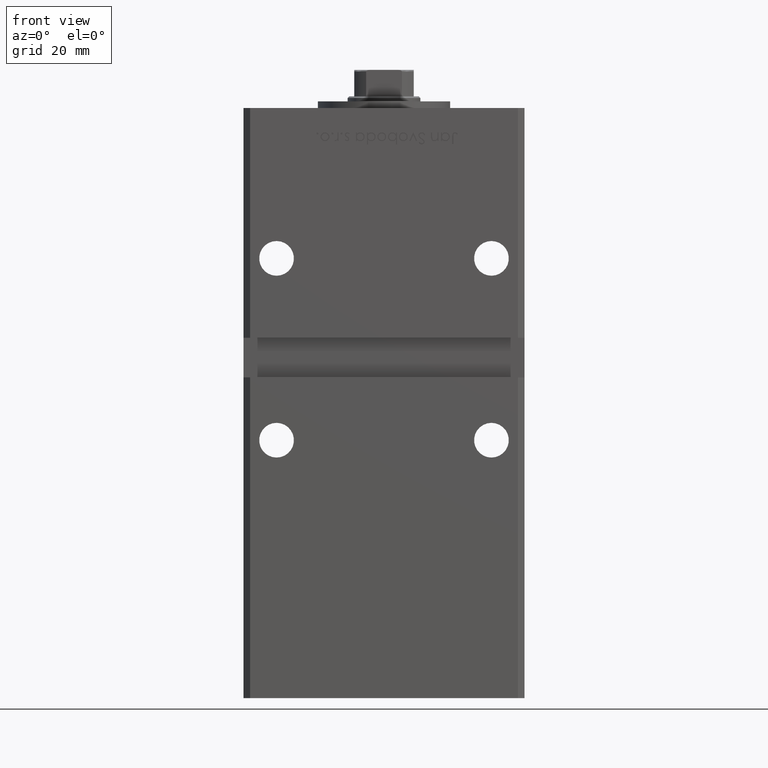
[diagram: clean part render]
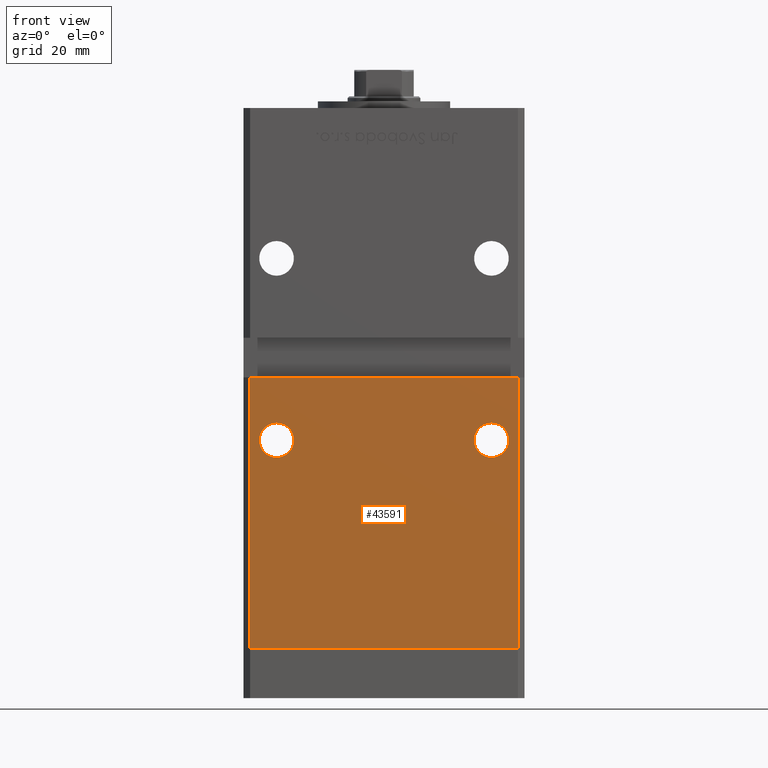
[diagram: same view with one face highlighted and labeled with its STEP entity id]
A machine part, front view. The second image highlights one B-rep face of the part: STEP entity #43591.
In plain terms, the highlighted planar face has unit normal (0, 1, 0).
Its self-contained STEP definition (entity closure, byte-faithful):
#136 = EDGE_LOOP ( 'NONE', ( #12746, #12372, #34602, #43545 ) ) ;
#552 = ORIENTED_EDGE ( 'NONE', *, *, #21589, .T. ) ;
#597 = AXIS2_PLACEMENT_3D ( 'NONE', #13013, #24601, #48774 ) ;
#1193 = VECTOR ( 'NONE', #36229, 1000.000000000000000 ) ;
#3377 = VECTOR ( 'NONE', #20659, 1000.000000000000000 ) ;
#3743 = LINE ( 'NONE', #24982, #15023 ) ;
#5142 = EDGE_CURVE ( 'NONE', #6617, #48277, #19492, .T. ) ;
#5181 = AXIS2_PLACEMENT_3D ( 'NONE', #16412, #7797, #24218 ) ;
#5877 = DIRECTION ( 'NONE',  ( 0.000000000000000000, 0.000000000000000000, 1.000000000000000000 ) ) ;
#6161 = EDGE_LOOP ( 'NONE', ( #552, #37387 ) ) ;
#6617 = VERTEX_POINT ( 'NONE', #28669 ) ;
#7797 = DIRECTION ( 'NONE',  ( 0.000000000000000000, 1.000000000000000000, 0.000000000000000000 ) ) ;
#8001 = DIRECTION ( 'NONE',  ( 1.000000000000000000, 0.000000000000000000, 0.000000000000000000 ) ) ;
#8129 = DIRECTION ( 'NONE',  ( 0.000000000000000000, 1.000000000000000000, 0.000000000000000000 ) ) ;
#8796 = VERTEX_POINT ( 'NONE', #25639 ) ;
#9299 = PLANE ( 'NONE',  #24311 ) ;
#9838 = VECTOR ( 'NONE', #8001, 1000.000000000000000 ) ;
#10767 = ORIENTED_EDGE ( 'NONE', *, *, #43201, .T. ) ;
#11644 = CARTESIAN_POINT ( 'NONE',  ( -32.50000000000000000, -37.50000000000000711, 63.00000000000000000 ) ) ;
#12372 = ORIENTED_EDGE ( 'NONE', *, *, #32135, .F. ) ;
#12653 = CARTESIAN_POINT ( 'NONE',  ( 32.50000000000000000, -37.50000000000000711, 68.24999999999998579 ) ) ;
#12746 = ORIENTED_EDGE ( 'NONE', *, *, #14195, .F. ) ;
#12840 = LINE ( 'NONE', #41069, #9838 ) ;
#13013 = CARTESIAN_POINT ( 'NONE',  ( 32.50000000000000000, -37.50000000000000711, 63.00000000000000000 ) ) ;
#13352 = DIRECTION ( 'NONE',  ( 0.000000000000000000, -0.000000000000000000, 1.000000000000000000 ) ) ;
#14155 = FACE_OUTER_BOUND ( 'NONE', #136, .T. ) ;
#14195 = EDGE_CURVE ( 'NONE', #26089, #27501, #52624, .T. ) ;
#15023 = VECTOR ( 'NONE', #16654, 1000.000000000000000 ) ;
#15829 = CARTESIAN_POINT ( 'NONE',  ( 40.49999999999998579, -37.50000000000000711, 148.5000000000000000 ) ) ;
#16336 = CARTESIAN_POINT ( 'NONE',  ( -40.49999999999998579, -37.50000000000000711, 0.000000000000000000 ) ) ;
#16412 = CARTESIAN_POINT ( 'NONE',  ( 32.50000000000000000, -37.50000000000000711, 63.00000000000000000 ) ) ;
#16654 = DIRECTION ( 'NONE',  ( -0.000000000000000000, -0.000000000000000000, -1.000000000000000000 ) ) ;
#17386 = DIRECTION ( 'NONE',  ( 0.000000000000000000, 1.000000000000000000, 0.000000000000000000 ) ) ;
#19492 = CIRCLE ( 'NONE', #597, 5.249999999999991118 ) ;
#20364 = FACE_BOUND ( 'NONE', #24700, .T. ) ;
#20509 = DIRECTION ( 'NONE',  ( 0.000000000000000000, 0.000000000000000000, 1.000000000000000000 ) ) ;
#20659 = DIRECTION ( 'NONE',  ( -0.000000000000000000, -0.000000000000000000, -1.000000000000000000 ) ) ;
#21461 = VERTEX_POINT ( 'NONE', #38293 ) ;
#21589 = EDGE_CURVE ( 'NONE', #48277, #6617, #37838, .T. ) ;
#22934 = VERTEX_POINT ( 'NONE', #44455 ) ;
#24218 = DIRECTION ( 'NONE',  ( 0.000000000000000000, 0.000000000000000000, 1.000000000000000000 ) ) ;
#24311 = AXIS2_PLACEMENT_3D ( 'NONE', #46663, #17386, #13352 ) ;
#24601 = DIRECTION ( 'NONE',  ( 0.000000000000000000, 1.000000000000000000, 0.000000000000000000 ) ) ;
#24700 = EDGE_LOOP ( 'NONE', ( #33310, #10767 ) ) ;
#24982 = CARTESIAN_POINT ( 'NONE',  ( -40.49999999999998579, -37.50000000000000711, 148.5000000000000000 ) ) ;
#25189 = AXIS2_PLACEMENT_3D ( 'NONE', #11644, #8129, #20509 ) ;
#25639 = CARTESIAN_POINT ( 'NONE',  ( -40.49999999999998579, -37.50000000000000711, 82.00000000000000000 ) ) ;
#26089 = VERTEX_POINT ( 'NONE', #47965 ) ;
#26443 = VERTEX_POINT ( 'NONE', #44408 ) ;
#27501 = VERTEX_POINT ( 'NONE', #30186 ) ;
#28669 = CARTESIAN_POINT ( 'NONE',  ( 32.50000000000000000, -37.50000000000000711, 57.75000000000000711 ) ) ;
#28979 = LINE ( 'NONE', #16336, #1193 ) ;
#29449 = CIRCLE ( 'NONE', #32008, 5.249999999999991118 ) ;
#30186 = CARTESIAN_POINT ( 'NONE',  ( 40.49999999999998579, -37.50000000000000711, 0.000000000000000000 ) ) ;
#30555 = FACE_BOUND ( 'NONE', #6161, .T. ) ;
#32008 = AXIS2_PLACEMENT_3D ( 'NONE', #38684, #42720, #5877 ) ;
#32135 = EDGE_CURVE ( 'NONE', #8796, #26089, #12840, .T. ) ;
#32457 = EDGE_CURVE ( 'NONE', #8796, #21461, #3743, .T. ) ;
#33310 = ORIENTED_EDGE ( 'NONE', *, *, #44991, .T. ) ;
#33778 = CIRCLE ( 'NONE', #25189, 5.249999999999991118 ) ;
#34596 = EDGE_CURVE ( 'NONE', #21461, #27501, #28979, .T. ) ;
#34602 = ORIENTED_EDGE ( 'NONE', *, *, #32457, .T. ) ;
#36229 = DIRECTION ( 'NONE',  ( 1.000000000000000000, 0.000000000000000000, 0.000000000000000000 ) ) ;
#37387 = ORIENTED_EDGE ( 'NONE', *, *, #5142, .T. ) ;
#37838 = CIRCLE ( 'NONE', #5181, 5.249999999999991118 ) ;
#38293 = CARTESIAN_POINT ( 'NONE',  ( -40.49999999999998579, -37.50000000000000711, 0.000000000000000000 ) ) ;
#38684 = CARTESIAN_POINT ( 'NONE',  ( -32.50000000000000000, -37.50000000000000711, 63.00000000000000000 ) ) ;
#41069 = CARTESIAN_POINT ( 'NONE',  ( -42.49999999999998579, -37.50000000000000711, 82.00000000000000000 ) ) ;
#42720 = DIRECTION ( 'NONE',  ( 0.000000000000000000, 1.000000000000000000, 0.000000000000000000 ) ) ;
#43201 = EDGE_CURVE ( 'NONE', #26443, #22934, #29449, .T. ) ;
#43545 = ORIENTED_EDGE ( 'NONE', *, *, #34596, .T. ) ;
#43591 = ADVANCED_FACE ( 'NONE', ( #20364, #30555, #14155 ), #9299, .F. ) ;
#44408 = CARTESIAN_POINT ( 'NONE',  ( -32.50000000000000000, -37.50000000000000711, 57.75000000000000000 ) ) ;
#44455 = CARTESIAN_POINT ( 'NONE',  ( -32.50000000000000000, -37.50000000000000711, 68.24999999999998579 ) ) ;
#44991 = EDGE_CURVE ( 'NONE', #22934, #26443, #33778, .T. ) ;
#46663 = CARTESIAN_POINT ( 'NONE',  ( -40.49999999999998579, -37.50000000000000711, 148.5000000000000000 ) ) ;
#47965 = CARTESIAN_POINT ( 'NONE',  ( 40.49999999999998579, -37.50000000000000711, 82.00000000000000000 ) ) ;
#48277 = VERTEX_POINT ( 'NONE', #12653 ) ;
#48774 = DIRECTION ( 'NONE',  ( 0.000000000000000000, 0.000000000000000000, 1.000000000000000000 ) ) ;
#52624 = LINE ( 'NONE', #15829, #3377 ) ;